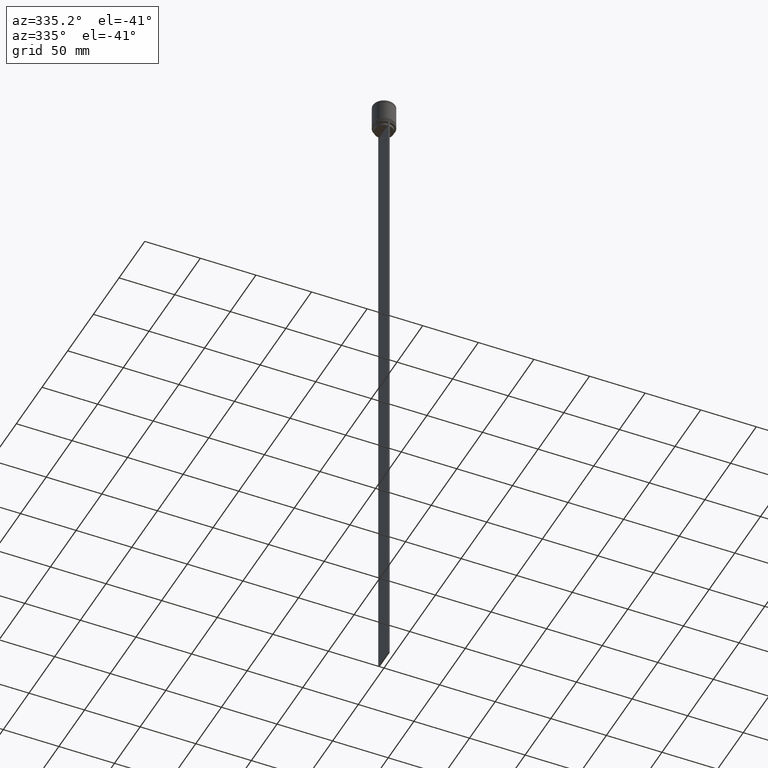
[diagram: clean part render]
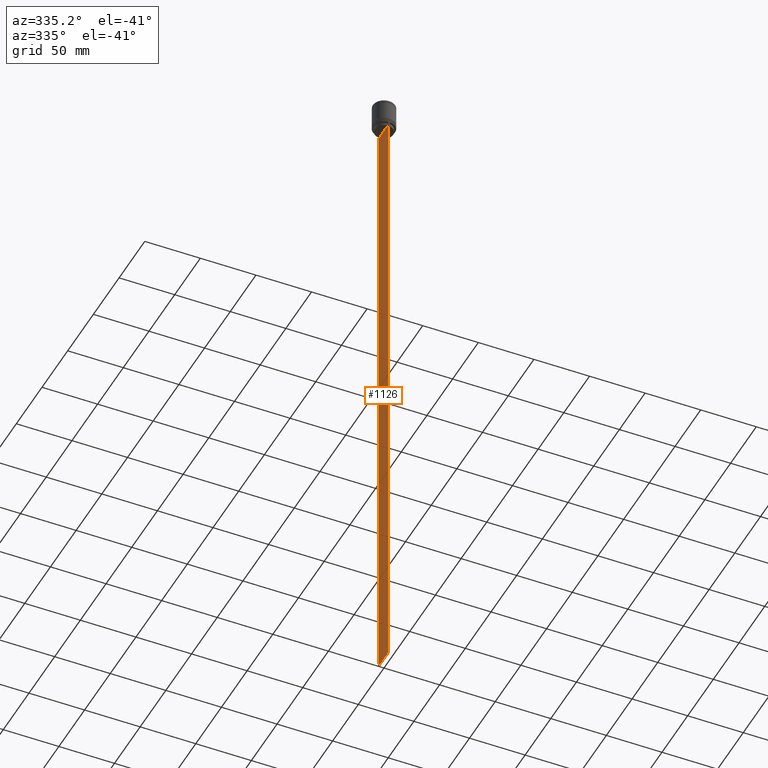
[diagram: same view with one face highlighted and labeled with its STEP entity id]
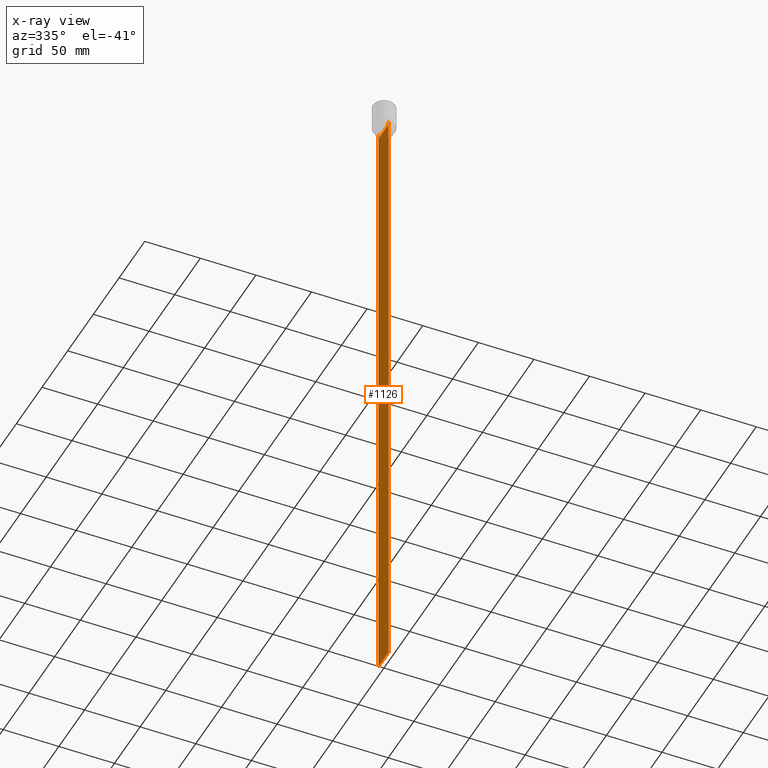
[diagram: x-ray of the same camera — body ghosted, the highlighted face saturated]
A machine part, auxiliary view. The second image highlights one B-rep face of the part: STEP entity #1126.
The next image is the same camera in x-ray: the body ghosted, the highlighted face saturated — about 0% of this face is hidden behind the body in this view.
In plain terms, the highlighted planar face has unit normal (-1, 0, 0).
Its self-contained STEP definition (entity closure, byte-faithful):
#1 = ORIENTED_EDGE ( 'NONE', *, *, #527, .F. ) ;
#35 = EDGE_CURVE ( 'NONE', #2015, #1648, #1111, .T. ) ;
#89 = EDGE_CURVE ( 'NONE', #674, #1144, #1148, .T. ) ;
#136 = DIRECTION ( 'NONE',  ( 0.000000000000000000, 0.000000000000000000, -1.000000000000000000 ) ) ;
#144 = EDGE_CURVE ( 'NONE', #238, #674, #1181, .T. ) ;
#162 = VERTEX_POINT ( 'NONE', #694 ) ;
#169 = VERTEX_POINT ( 'NONE', #1947 ) ;
#170 = ORIENTED_EDGE ( 'NONE', *, *, #1007, .F. ) ;
#204 = PLANE ( 'NONE',  #1605 ) ;
#207 = DIRECTION ( 'NONE',  ( -0.000000000000000000, -0.000000000000000000, 1.000000000000000000 ) ) ;
#232 = CARTESIAN_POINT ( 'NONE',  ( -0.5000000000000000000, -8.385105843100610912, -23.00000000000000000 ) ) ;
#234 = CARTESIAN_POINT ( 'NONE',  ( -0.5000000000000000000, -10.00000000000000178, -22.50000000000000000 ) ) ;
#238 = VERTEX_POINT ( 'NONE', #681 ) ;
#277 = ORIENTED_EDGE ( 'NONE', *, *, #1981, .F. ) ;
#283 = VECTOR ( 'NONE', #1620, 1000.000000000000000 ) ;
#288 = EDGE_CURVE ( 'NONE', #1144, #1280, #626, .T. ) ;
#300 = LINE ( 'NONE', #621, #1637 ) ;
#338 = CARTESIAN_POINT ( 'NONE',  ( -0.5000000000000000000, -10.00000000000000178, -2.475015605499213844 ) ) ;
#346 = B_SPLINE_CURVE_WITH_KNOTS ( 'NONE', 3,
 ( #232, #545, #392, #1201 ),
 .UNSPECIFIED., .F., .F.,
 ( 4, 4 ),
 ( 0.03898465126933125385, 0.03969388910599652709 ),
 .UNSPECIFIED. ) ;
#347 = VECTOR ( 'NONE', #1650, 1000.000000000000000 ) ;
#370 = CARTESIAN_POINT ( 'NONE',  ( -0.5000000000000000000, 9.887365675446622149, -22.50000000000000000 ) ) ;
#372 = DIRECTION ( 'NONE',  ( 0.000000000000000000, -1.000000000000000000, 0.000000000000000000 ) ) ;
#373 = CARTESIAN_POINT ( 'NONE',  ( -0.5000000000000000000, 8.400000000000000355, -25.50000000000000000 ) ) ;
#374 = CARTESIAN_POINT ( 'NONE',  ( -0.5000000000000000000, 9.999999999999998224, -596.4999999999998863 ) ) ;
#392 = CARTESIAN_POINT ( 'NONE',  ( -0.5000000000000000000, -8.719005764482783860, -22.66667454151159689 ) ) ;
#405 = VECTOR ( 'NONE', #136, 1000.000000000000000 ) ;
#464 = CARTESIAN_POINT ( 'NONE',  ( -0.5000000000000000000, 8.385105843100610912, -23.00000000000000000 ) ) ;
#469 = EDGE_CURVE ( 'NONE', #2015, #1441, #511, .T. ) ;
#511 = LINE ( 'NONE', #1819, #983 ) ;
#527 = EDGE_CURVE ( 'NONE', #169, #238, #346, .T. ) ;
#535 = DIRECTION ( 'NONE',  ( -1.000000000000000000, 0.000000000000000000, 0.000000000000000000 ) ) ;
#545 = CARTESIAN_POINT ( 'NONE',  ( -0.5000000000000000000, -8.552060194457768105, -22.83334167772666845 ) ) ;
#605 = ORIENTED_EDGE ( 'NONE', *, *, #1888, .F. ) ;
#621 = CARTESIAN_POINT ( 'NONE',  ( -0.5000000000000000000, -10.00000000000000178, -596.4999999999998863 ) ) ;
#626 = LINE ( 'NONE', #1883, #405 ) ;
#642 = DIRECTION ( 'NONE',  ( 0.000000000000000000, -1.000000000000000000, 0.000000000000000000 ) ) ;
#674 = VERTEX_POINT ( 'NONE', #1371 ) ;
#681 = CARTESIAN_POINT ( 'NONE',  ( -0.5000000000000000000, -8.885943956609226646, -22.50000000000000000 ) ) ;
#694 = CARTESIAN_POINT ( 'NONE',  ( -0.5000000000000000000, -8.385105843100610912, -25.50000000000000000 ) ) ;
#702 = ORIENTED_EDGE ( 'NONE', *, *, #144, .F. ) ;
#741 = VECTOR ( 'NONE', #984, 1000.000000000000000 ) ;
#810 = EDGE_CURVE ( 'NONE', #1280, #1441, #300, .T. ) ;
#843 = CARTESIAN_POINT ( 'NONE',  ( -0.5000000000000000000, -10.00000000000000178, -22.50000000000000000 ) ) ;
#923 = CARTESIAN_POINT ( 'NONE',  ( -0.5000000000000000000, 8.552060201981374732, -22.83334167021640582 ) ) ;
#966 = LINE ( 'NONE', #1300, #283 ) ;
#972 = DIRECTION ( 'NONE',  ( 0.000000000000000000, 0.000000000000000000, -1.000000000000000000 ) ) ;
#983 = VECTOR ( 'NONE', #972, 1000.000000000000000 ) ;
#984 = DIRECTION ( 'NONE',  ( 0.000000000000000000, -1.000000000000000000, 0.000000000000000000 ) ) ;
#1007 = EDGE_CURVE ( 'NONE', #1554, #162, #1833, .T. ) ;
#1026 = CARTESIAN_POINT ( 'NONE',  ( -0.5000000000000000000, 8.385105843100610912, 0.000000000000000000 ) ) ;
#1048 = B_SPLINE_CURVE_WITH_KNOTS ( 'NONE', 3,
 ( #1758, #1114, #923, #464 ),
 .UNSPECIFIED., .F., .F.,
 ( 4, 4 ),
 ( 0.01511546479386905242, 0.01582316445439076874 ),
 .UNSPECIFIED. ) ;
#1111 = LINE ( 'NONE', #1917, #1491 ) ;
#1114 = CARTESIAN_POINT ( 'NONE',  ( -0.5000000000000000000, 8.719005771582342135, -22.66667453442325098 ) ) ;
#1126 = ADVANCED_FACE ( 'NONE', ( #1474 ), #204, .T. ) ;
#1132 = CARTESIAN_POINT ( 'NONE',  ( -0.5000000000000000000, 8.385105843100610912, -25.50000000000000000 ) ) ;
#1144 = VERTEX_POINT ( 'NONE', #234 ) ;
#1148 = LINE ( 'NONE', #1980, #741 ) ;
#1154 = VECTOR ( 'NONE', #372, 1000.000000000000000 ) ;
#1179 = LINE ( 'NONE', #1026, #347 ) ;
#1181 = LINE ( 'NONE', #843, #1154 ) ;
#1201 = CARTESIAN_POINT ( 'NONE',  ( -0.5000000000000000000, -8.885943956609226646, -22.50000000000000000 ) ) ;
#1225 = CARTESIAN_POINT ( 'NONE',  ( -0.5000000000000000000, -10.00000000000000178, -596.4999999999998863 ) ) ;
#1280 = VERTEX_POINT ( 'NONE', #1225 ) ;
#1300 = CARTESIAN_POINT ( 'NONE',  ( -0.5000000000000000000, -10.00000000000000178, -22.50000000000000000 ) ) ;
#1346 = DIRECTION ( 'NONE',  ( 0.000000000000000000, 0.000000000000000000, 1.000000000000000000 ) ) ;
#1371 = CARTESIAN_POINT ( 'NONE',  ( -0.5000000000000000000, -9.887365675446622149, -22.50000000000000000 ) ) ;
#1404 = ORIENTED_EDGE ( 'NONE', *, *, #1467, .F. ) ;
#1426 = EDGE_LOOP ( 'NONE', ( #1532, #277, #1661, #1439, #1582, #1617, #1827, #702, #1, #605, #170, #1404 ) ) ;
#1439 = ORIENTED_EDGE ( 'NONE', *, *, #469, .T. ) ;
#1441 = VERTEX_POINT ( 'NONE', #374 ) ;
#1454 = LINE ( 'NONE', #1468, #1607 ) ;
#1467 = EDGE_CURVE ( 'NONE', #1630, #1554, #1179, .T. ) ;
#1468 = CARTESIAN_POINT ( 'NONE',  ( -0.5000000000000000000, -8.385105843100610912, 0.000000000000000000 ) ) ;
#1474 = FACE_OUTER_BOUND ( 'NONE', #1426, .T. ) ;
#1491 = VECTOR ( 'NONE', #1906, 1000.000000000000000 ) ;
#1516 = CARTESIAN_POINT ( 'NONE',  ( -0.5000000000000000000, 8.385105843100610912, -23.00000000000000000 ) ) ;
#1522 = CARTESIAN_POINT ( 'NONE',  ( -0.5000000000000000000, 9.999999999999994671, -22.50000000000000000 ) ) ;
#1532 = ORIENTED_EDGE ( 'NONE', *, *, #1729, .F. ) ;
#1554 = VERTEX_POINT ( 'NONE', #1132 ) ;
#1582 = ORIENTED_EDGE ( 'NONE', *, *, #810, .F. ) ;
#1605 = AXIS2_PLACEMENT_3D ( 'NONE', #338, #535, #1346 ) ;
#1607 = VECTOR ( 'NONE', #207, 1000.000000000000000 ) ;
#1617 = ORIENTED_EDGE ( 'NONE', *, *, #288, .F. ) ;
#1620 = DIRECTION ( 'NONE',  ( 0.000000000000000000, -1.000000000000000000, 0.000000000000000000 ) ) ;
#1630 = VERTEX_POINT ( 'NONE', #1516 ) ;
#1637 = VECTOR ( 'NONE', #1895, 1000.000000000000000 ) ;
#1648 = VERTEX_POINT ( 'NONE', #370 ) ;
#1650 = DIRECTION ( 'NONE',  ( 0.000000000000000000, 0.000000000000000000, -1.000000000000000000 ) ) ;
#1661 = ORIENTED_EDGE ( 'NONE', *, *, #35, .F. ) ;
#1693 = CARTESIAN_POINT ( 'NONE',  ( -0.5000000000000000000, 8.885943956609226646, -22.50000000000000000 ) ) ;
#1729 = EDGE_CURVE ( 'NONE', #2051, #1630, #1048, .T. ) ;
#1758 = CARTESIAN_POINT ( 'NONE',  ( -0.5000000000000000000, 8.885943956609226646, -22.50000000000000000 ) ) ;
#1819 = CARTESIAN_POINT ( 'NONE',  ( -0.5000000000000000000, 9.999999999999998224, -2.475015605499213844 ) ) ;
#1827 = ORIENTED_EDGE ( 'NONE', *, *, #89, .F. ) ;
#1833 = LINE ( 'NONE', #373, #2061 ) ;
#1883 = CARTESIAN_POINT ( 'NONE',  ( -0.5000000000000000000, -10.00000000000000178, -2.475015605499213844 ) ) ;
#1888 = EDGE_CURVE ( 'NONE', #162, #169, #1454, .T. ) ;
#1895 = DIRECTION ( 'NONE',  ( 0.000000000000000000, 1.000000000000000000, 0.000000000000000000 ) ) ;
#1906 = DIRECTION ( 'NONE',  ( 0.000000000000000000, -1.000000000000000000, 0.000000000000000000 ) ) ;
#1917 = CARTESIAN_POINT ( 'NONE',  ( -0.5000000000000000000, -10.00000000000000178, -22.50000000000000000 ) ) ;
#1947 = CARTESIAN_POINT ( 'NONE',  ( -0.5000000000000000000, -8.385105843100610912, -23.00000000000000000 ) ) ;
#1980 = CARTESIAN_POINT ( 'NONE',  ( -0.5000000000000000000, -10.00000000000000178, -22.50000000000000000 ) ) ;
#1981 = EDGE_CURVE ( 'NONE', #1648, #2051, #966, .T. ) ;
#2015 = VERTEX_POINT ( 'NONE', #1522 ) ;
#2051 = VERTEX_POINT ( 'NONE', #1693 ) ;
#2061 = VECTOR ( 'NONE', #642, 1000.000000000000000 ) ;